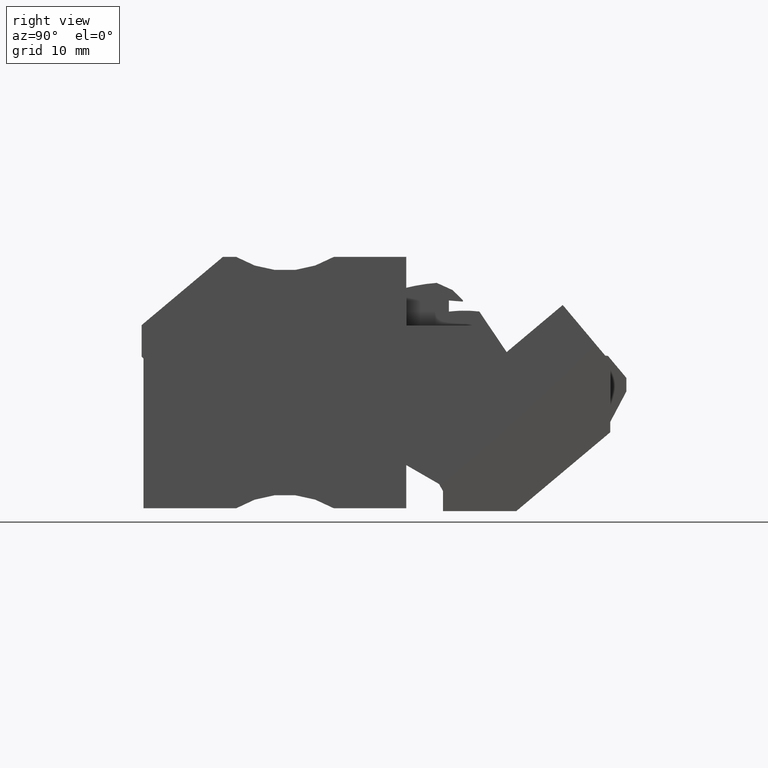
[diagram: clean part render]
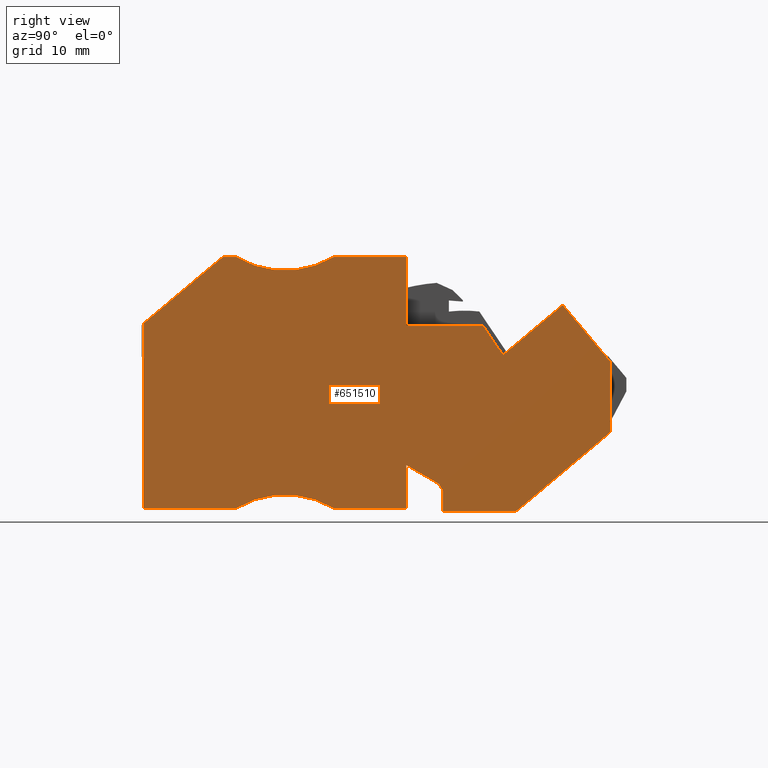
[diagram: same view with one face highlighted and labeled with its STEP entity id]
A machine part, right view. The second image highlights one B-rep face of the part: STEP entity #651510.
In plain terms, the highlighted planar face has unit normal (1, 0, -0).
Its self-contained STEP definition (entity closure, byte-faithful):
#645170=CARTESIAN_POINT('',(451.720146008141,673.50588666251,
116.96999998074));
#645180=VERTEX_POINT('',#645170);
#645210=CARTESIAN_POINT('',(66.4180494989033,1340.8686959358,
116.969999765297));
#645220=DIRECTION('',(-0.499999998956815,0.866025404386722,
-2.79576749618894E-10));
#645230=VECTOR('',#645220,1.);
#645240=LINE('',#645210,#645230);
#645250=CARTESIAN_POINT('',(452.153158709285,672.75588666172,
116.969999980982));
#645260=VERTEX_POINT('',#645250);
#645270=EDGE_CURVE('',#645260,#645180,#645240,.T.);
#645550=CARTESIAN_POINT('',(420.453158768086,690.486358066186,
116.969999979035));
#645560=VERTEX_POINT('',#645550);
#645590=CARTESIAN_POINT('',(420.453158760792,686.450091420854,
116.969999980748));
#645600=DIRECTION('',(-1.80696546614432E-9,-1.,4.24416371870361E-10));
#645610=VECTOR('',#645600,1.);
#645620=LINE('',#645590,#645610);
#645630=CARTESIAN_POINT('',(420.453158732756,670.934347668481,
116.969999987333));
#645640=VERTEX_POINT('',#645630);
#645650=EDGE_CURVE('',#645560,#645640,#645620,.T.);
#646410=CARTESIAN_POINT('',(435.668902492134,670.934347650153,
116.969999990002));
#646420=DIRECTION('',(1.,-1.20456572494381E-9,-1.2810032886981E-10));
#646430=VECTOR('',#646420,1.);
#646440=LINE('',#646410,#646430);
#646450=CARTESIAN_POINT('',(430.260883724089,670.934347656667,
116.969999990695));
#646460=VERTEX_POINT('',#646450);
#646470=EDGE_CURVE('',#645640,#646460,#646440,.T.);
#646880=CARTESIAN_POINT('',(435.425728083655,662.371381888813,
116.969999994011));
#646890=DIRECTION('',(1.28100595517667E-10,4.64504649617954E-10,1.));
#646900=DIRECTION('',(0.707106782058739,0.707106780314356,
-4.19035115678159E-10));
#646910=AXIS2_PLACEMENT_3D('',#646880,#646890,#646900);
#646920=CIRCLE('',#646910,10.);
#646930=CARTESIAN_POINT('',(440.590572463825,670.934347644241,
116.969999989372));
#646940=VERTEX_POINT('',#646930);
#646950=EDGE_CURVE('',#646940,#646460,#646920,.T.);
#647150=CARTESIAN_POINT('',(435.968902490115,670.934347649792,
116.969999989964));
#647160=DIRECTION('',(1.,-1.20456572494381E-9,-1.28100291599098E-10));
#647170=VECTOR('',#647160,1.);
#647180=LINE('',#647150,#647170);
#647190=CARTESIAN_POINT('',(448.253158711392,670.934347634995,
116.96999998839));
#647200=VERTEX_POINT('',#647190);
#647210=EDGE_CURVE('',#646940,#647200,#647180,.T.);
#647490=CARTESIAN_POINT('',(448.253158716901,675.507552713952,
116.969999980501));
#647500=VERTEX_POINT('',#647490);
#647550=CARTESIAN_POINT('',(448.253158729923,686.318603613043,
116.969999981244));
#647560=DIRECTION('',(-1.20456361551975E-9,-1.,4.64504820525951E-10));
#647570=VECTOR('',#647560,1.);
#647580=LINE('',#647550,#647570);
#647590=EDGE_CURVE('',#647500,#647200,#647580,.T.);
#647770=CARTESIAN_POINT('',(443.998522778196,677.963967925301,
116.969999980207));
#647780=DIRECTION('',(0.866025403182159,-0.50000000104318,
5.9824925418767E-11));
#647790=VECTOR('',#647780,1.);
#647800=LINE('',#647770,#647790);
#647810=EDGE_CURVE('',#647500,#645180,#647800,.T.);
#648040=CARTESIAN_POINT('',(428.85262573681,697.534347672595,
116.969999974566));
#648050=VERTEX_POINT('',#648040);
#648100=CARTESIAN_POINT('',(418.258461664618,688.644788550578,
116.969999980203));
#648110=DIRECTION('',(0.766044444670996,0.642787607836916,
-4.07600435471174E-10));
#648120=VECTOR('',#648110,1.);
#648130=LINE('',#648100,#648120);
#648140=EDGE_CURVE('',#645560,#648050,#648130,.T.);
#648500=CARTESIAN_POINT('',(430.260883732126,697.534347670779,
116.969999978339));
#648510=VERTEX_POINT('',#648500);
#648540=CARTESIAN_POINT('',(459.468902533155,697.534347635716,
116.969999969179));
#648550=DIRECTION('',(1.,-1.20456350449778E-9,-1.7595690306274E-10));
#648560=VECTOR('',#648550,1.);
#648570=LINE('',#648540,#648560);
#648580=EDGE_CURVE('',#648050,#648510,#648570,.T.);
#648820=CARTESIAN_POINT('',(440.590572493837,697.534347644452,
116.969999977016));
#648830=VERTEX_POINT('',#648820);
#648860=CARTESIAN_POINT('',(435.425728134811,706.097313412627,
116.9699999737));
#648870=DIRECTION('',(1.28100595517667E-10,4.64504649617954E-10,1.));
#648880=DIRECTION('',(0.707106782058739,0.707106780314356,
-4.19035115678159E-10));
#648890=AXIS2_PLACEMENT_3D('',#648860,#648870,#648880);
#648900=CIRCLE('',#648890,10.);
#648910=EDGE_CURVE('',#648510,#648830,#648900,.T.);
#649120=CARTESIAN_POINT('',(448.253158743434,697.534347635222,
116.969999976034));
#649130=VERTEX_POINT('',#649120);
#649160=CARTESIAN_POINT('',(409.368902524708,697.53434768206,
116.969999981035));
#649170=DIRECTION('',(-1.,1.20456378205352E-9,1.28100328869811E-10));
#649180=VECTOR('',#649170,1.);
#649190=LINE('',#649160,#649180);
#649200=EDGE_CURVE('',#649130,#648830,#649190,.T.);
#649430=CARTESIAN_POINT('',(448.25315873464,690.234347635293,
116.969999979425));
#649440=VERTEX_POINT('',#649430);
#649470=EDGE_CURVE('',#649130,#649440,#647580,.T.);
#649730=CARTESIAN_POINT('',(456.411547091617,690.234347625466,
116.969999972815));
#649740=VERTEX_POINT('',#649730);
#649770=CARTESIAN_POINT('',(412.568902750269,690.234347678277,
116.969999980529));
#649780=DIRECTION('',(-1.,1.20456478125426E-9,1.75956911828149E-10));
#649790=VECTOR('',#649780,1.);
#649800=LINE('',#649770,#649790);
#649810=EDGE_CURVE('',#649740,#649440,#649800,.T.);
#649980=CARTESIAN_POINT('',(471.149558074871,668.384347728802,
116.969999979495));
#649990=DIRECTION('',(0.559192902426276,-0.829037573259547,
2.53463132922706E-10));
#650000=VECTOR('',#649990,1.);
#650010=LINE('',#649980,#650000);
#650020=CARTESIAN_POINT('',(458.497798357913,687.141352924051,
116.969999973761));
#650030=VERTEX_POINT('',#650020);
#650040=EDGE_CURVE('',#649740,#650030,#650010,.T.);
#650400=CARTESIAN_POINT('',(469.853158717328,678.981362858274,
116.969999975226));
#650410=VERTEX_POINT('',#650400);
#650440=CARTESIAN_POINT('',(469.853158752185,707.918603582018,
116.969999962944));
#650450=DIRECTION('',(1.20455911911653E-9,1.,-4.24416471219152E-10));
#650460=VECTOR('',#650450,1.);
#650470=LINE('',#650440,#650460);
#650480=CARTESIAN_POINT('',(469.853158726322,686.448039223552,
116.969999972057));
#650490=VERTEX_POINT('',#650480);
#650500=EDGE_CURVE('',#650410,#650490,#650470,.T.);
#650780=CARTESIAN_POINT('',(459.905573292604,670.634347620958,
116.969999980519));
#650790=VERTEX_POINT('',#650780);
#650820=CARTESIAN_POINT('',(447.053267507449,659.849982607445,
116.969999987357));
#650830=DIRECTION('',(-0.766044444016711,-0.642787608616663,
4.07600244682758E-10));
#650840=VECTOR('',#650830,1.);
#650850=LINE('',#650820,#650840);
#650860=EDGE_CURVE('',#650410,#650790,#650850,.T.);
#651000=CARTESIAN_POINT('',(434.418902613937,672.484347530621,
116.969999984218));
#651010=DIRECTION('',(1.75956914421888E-10,4.2441642785003E-10,1.));
#651020=DIRECTION('',(0.707106780334796,-0.707106782038299,
1.75687407306717E-10));
#651030=AXIS2_PLACEMENT_3D('',#651000,#651010,#651020);
#651040=PLANE('',#651030);
#651050=ORIENTED_EDGE('',*,*,#647590,.F.);
#651060=ORIENTED_EDGE('',*,*,#647210,.T.);
#651070=ORIENTED_EDGE('',*,*,#646950,.F.);
#651080=ORIENTED_EDGE('',*,*,#646470,.T.);
#651090=ORIENTED_EDGE('',*,*,#645650,.T.);
#651100=ORIENTED_EDGE('',*,*,#648140,.F.);
#651110=ORIENTED_EDGE('',*,*,#648580,.F.);
#651120=ORIENTED_EDGE('',*,*,#648910,.F.);
#651130=ORIENTED_EDGE('',*,*,#649200,.T.);
#651140=ORIENTED_EDGE('',*,*,#649470,.F.);
#651150=ORIENTED_EDGE('',*,*,#649810,.T.);
#651160=ORIENTED_EDGE('',*,*,#650040,.F.);
#651170=CARTESIAN_POINT('',(434.418902601116,666.936760434387,
116.969999986573));
#651180=DIRECTION('',(0.766044443506207,0.642787609225058,
-4.07600241177514E-10));
#651190=VECTOR('',#651180,1.);
#651200=LINE('',#651170,#651190);
#651210=CARTESIAN_POINT('',(464.820007012528,692.446315867875,
116.969999970397));
#651220=VERTEX_POINT('',#651210);
#651230=EDGE_CURVE('',#650030,#651220,#651200,.T.);
#651240=ORIENTED_EDGE('',*,*,#651230,.F.);
#651250=CARTESIAN_POINT('',(460.057092044813,698.122536898813,
116.969999968826));
#651260=DIRECTION('',(-0.642787609225153,0.766044443506127,
-2.12018918733443E-10));
#651270=VECTOR('',#651260,1.);
#651280=LINE('',#651250,#651270);
#651290=EDGE_CURVE('',#650490,#651220,#651280,.T.);
#651300=ORIENTED_EDGE('',*,*,#651290,.T.);
#651310=ORIENTED_EDGE('',*,*,#650500,.T.);
#651320=ORIENTED_EDGE('',*,*,#650860,.F.);
#651330=CARTESIAN_POINT('',(436.268902491755,670.63434764943,
116.969999984678));
#651340=DIRECTION('',(1.,-1.20456572494383E-9,-1.75956908679912E-10));
#651350=VECTOR('',#651340,1.);
#651360=LINE('',#651330,#651350);
#651370=CARTESIAN_POINT('',(452.153158706729,670.634347630297,
116.969999981883));
#651380=VERTEX_POINT('',#651370);
#651390=EDGE_CURVE('',#651380,#650790,#651360,.T.);
#651400=ORIENTED_EDGE('',*,*,#651390,.T.);
#651410=CARTESIAN_POINT('',(452.153158725381,686.118603852841,
116.969999975311));
#651420=DIRECTION('',(1.20456272734136E-9,1.,-4.24416190185318E-10));
#651430=VECTOR('',#651420,1.);
#651440=LINE('',#651410,#651430);
#651450=EDGE_CURVE('',#651380,#645260,#651440,.T.);
#651460=ORIENTED_EDGE('',*,*,#651450,.F.);
#651470=ORIENTED_EDGE('',*,*,#645270,.F.);
#651480=ORIENTED_EDGE('',*,*,#647810,.T.);
#651490=EDGE_LOOP('',(#651480,#651470,#651460,#651400,#651320,#651310,
#651300,#651240,#651160,#651150,#651140,#651130,#651120,#651110,#651100,
#651090,#651080,#651070,#651060,#651050));
#651500=FACE_OUTER_BOUND('',#651490,.T.);
#651510=ADVANCED_FACE('',(#651500),#651040,.T.);